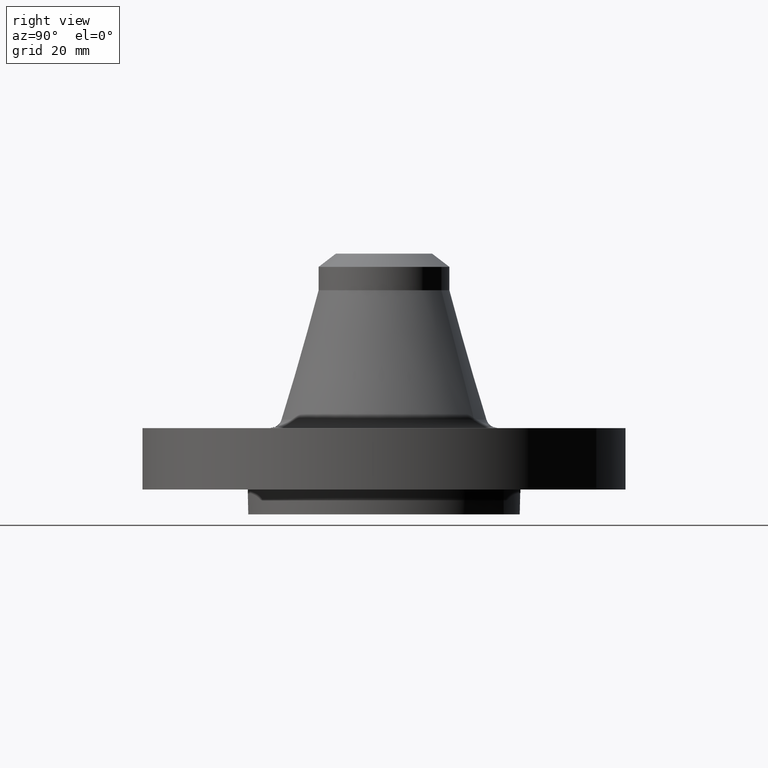
[diagram: clean part render]
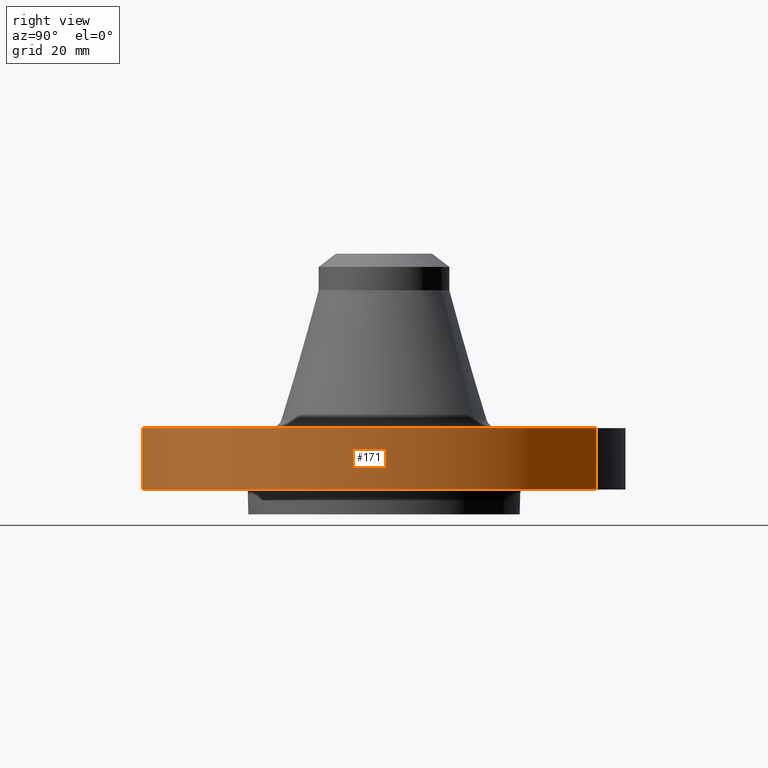
[diagram: same view with one face highlighted and labeled with its STEP entity id]
A machine part, right view. The second image highlights one B-rep face of the part: STEP entity #171.
In plain terms, the highlighted cylindrical surface (partial cylindrical patch) has radius 61.976 mm, axis along (0, 0, -1).
Its self-contained STEP definition (entity closure, byte-faithful):
#118=AXIS2_PLACEMENT_3D('Cylinder Axis2P3D',#115,#116,#117) ;
#157=AXIS2_PLACEMENT_3D('Circle Axis2P3D',#155,#156,$) ;
#162=AXIS2_PLACEMENT_3D('Circle Axis2P3D',#160,#161,$) ;
#115=CARTESIAN_POINT('Axis2P3D Location',(0.,0.,1.065)) ;
#124=CARTESIAN_POINT('Vertex',(-1.1697983142,-2.14130145102,2.79741234551E-016)) ;
#126=CARTESIAN_POINT('Vertex',(1.1697983142,2.14130145102,2.79741234551E-016)) ;
#129=CARTESIAN_POINT('Line Origine',(-1.1697983142,-2.14130145102,0.310000000001)) ;
#133=CARTESIAN_POINT('Vertex',(-1.1697983142,-2.14130145102,0.620000000002)) ;
#140=CARTESIAN_POINT('Vertex',(1.1697983142,2.14130145102,0.620000000002)) ;
#143=CARTESIAN_POINT('Line Origine',(1.1697983142,2.14130145102,0.310000000001)) ;
#155=CARTESIAN_POINT('Axis2P3D Location',(0.,0.,1.39870617276E-016)) ;
#160=CARTESIAN_POINT('Axis2P3D Location',(0.,0.,0.620000000002)) ;
#116=DIRECTION('Axis2P3D Direction',(0.,0.,-0.0393700787402)) ;
#117=DIRECTION('Axis2P3D XDirection',(0.0188750212049,0.0345504945626,0.)) ;
#130=DIRECTION('Vector Direction',(0.,0.,-0.0393700787402)) ;
#144=DIRECTION('Vector Direction',(0.,0.,-0.0393700787402)) ;
#156=DIRECTION('Axis2P3D Direction',(0.,0.,-0.0393700787402)) ;
#161=DIRECTION('Axis2P3D Direction',(0.,0.,-0.0393700787402)) ;
#131=VECTOR('Line Direction',#130,0.0393700787402) ;
#145=VECTOR('Line Direction',#144,0.0393700787402) ;
#166=ORIENTED_EDGE('',*,*,#159,.F.) ;
#167=ORIENTED_EDGE('',*,*,#147,.T.) ;
#168=ORIENTED_EDGE('',*,*,#164,.T.) ;
#169=ORIENTED_EDGE('',*,*,#135,.F.) ;
#171=ADVANCED_FACE('PartBody',(#170),#119,.T.) ;
#158=CIRCLE('generated circle',#157,2.44000000001) ;
#163=CIRCLE('generated circle',#162,2.44000000001) ;
#119=CYLINDRICAL_SURFACE('generated cylinder',#118,2.44000000001) ;
#135=EDGE_CURVE('',#125,#134,#132,.F.) ;
#147=EDGE_CURVE('',#127,#141,#146,.F.) ;
#159=EDGE_CURVE('',#127,#125,#158,.T.) ;
#164=EDGE_CURVE('',#141,#134,#163,.T.) ;
#165=EDGE_LOOP('',(#166,#167,#168,#169)) ;
#170=FACE_OUTER_BOUND('',#165,.T.) ;
#132=LINE('Line',#129,#131) ;
#146=LINE('Line',#143,#145) ;
#125=VERTEX_POINT('',#124) ;
#127=VERTEX_POINT('',#126) ;
#134=VERTEX_POINT('',#133) ;
#141=VERTEX_POINT('',#140) ;